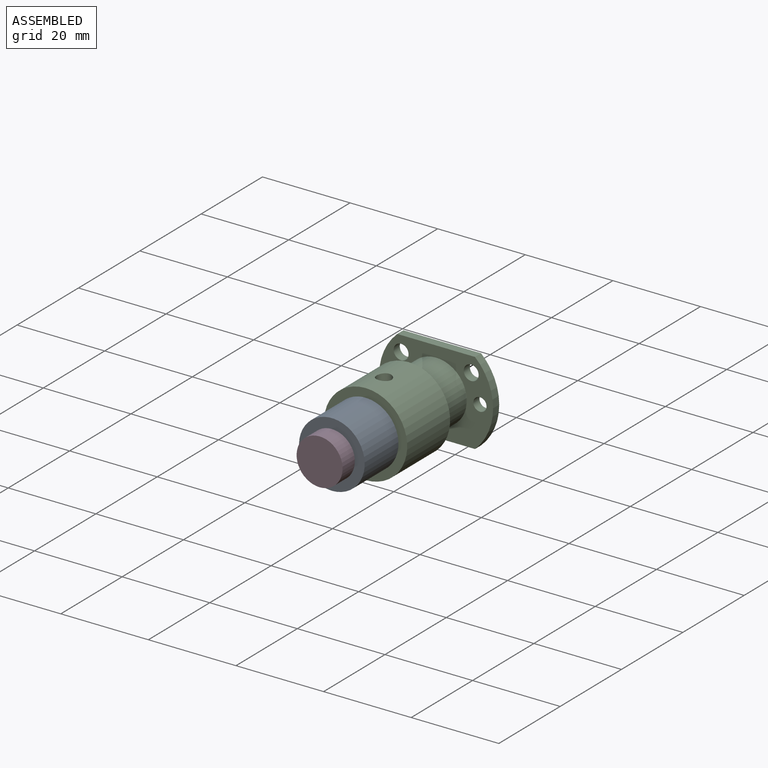
[diagram: assembled view]
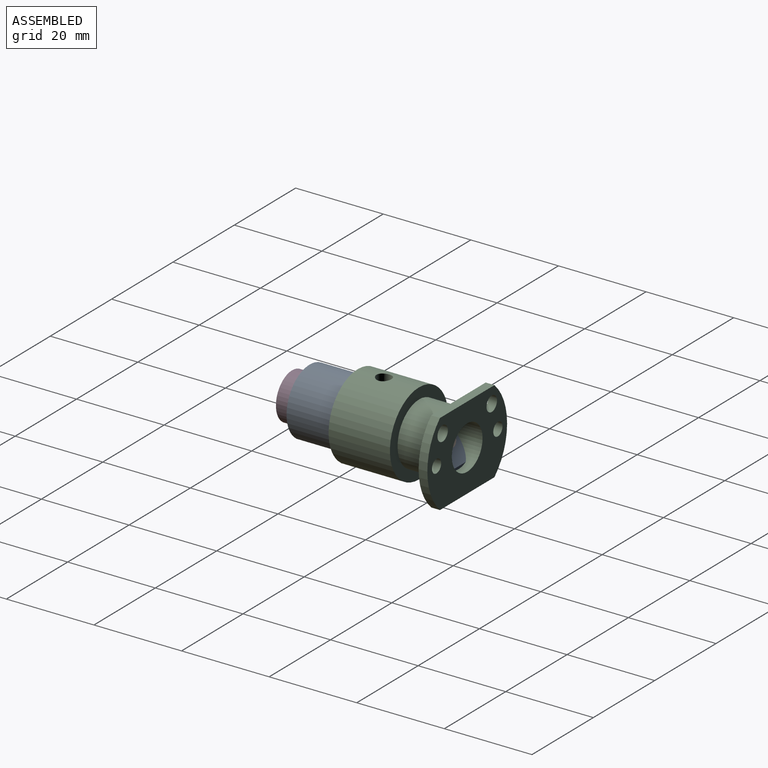
[diagram: assembled view, second angle]
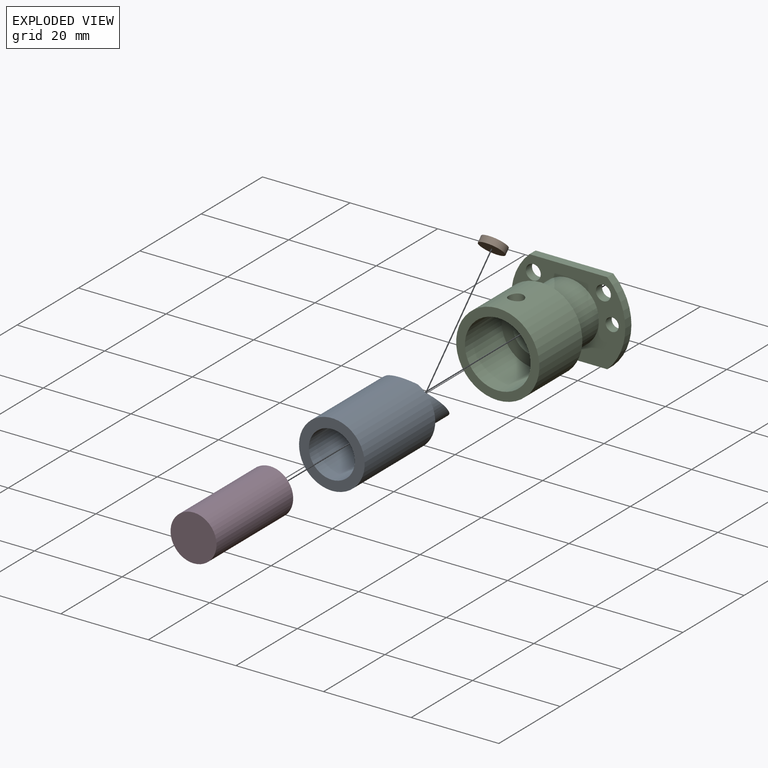
[diagram: exploded view]
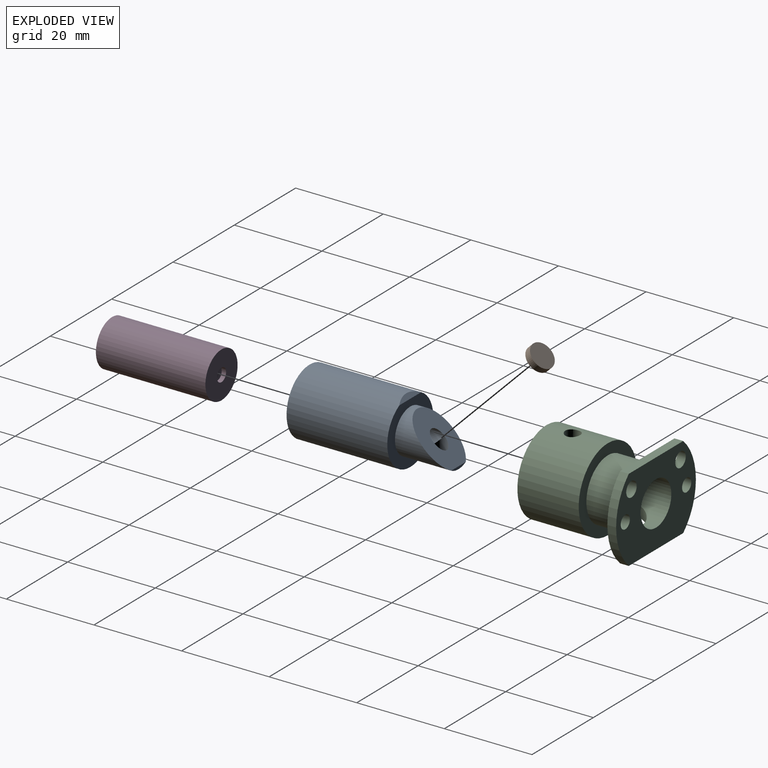
[diagram: exploded view, second angle]
ASSEMBLY  parts=4 mates=3
PART A: 11 faces, bbox 15x34x15 mm
  f0: cylinder r=7.5mm len=23mm, axis (0,1,0), area 1079.4mm2, adj f3,f4,f9
  f1: cylinder r=1.75mm len=8.6mm, axis (0,1,0), area 82.3mm2, adj f6,f7,f8
  f2: cylinder r=5mm len=11mm, axis (0,1,0), area 195.6mm2, adj f3,f7,f8,f10
  f3: plane 15x14.1mm, normal (0,1,0), area 93.8mm2, adj f0,f2,f9
  f4: plane 15x15mm, normal (0,-1,0), area 90.1mm2, adj f0,f5
  f5: cylinder r=5.25mm len=21mm, axis (0,-1,0), area 692.7mm2, adj f4,f6
  f6: plane 10.5x10.5mm, normal (0,-1,0), area 77mm2, adj f1,f5
  f7: cylinder r=1.75mm len=4.68mm, axis (0,0,1), area 39.3mm2, adj f1,f2,f8
  f8: plane 10x9.4mm, normal (0,0.71,0.71), area 94.7mm2, adj f1,f2,f7,f10
  f9: plane 7.12x0.9mm, normal (0,0.71,0.71), area 6.1mm2, adj f0,f3
  f10: plane 4.75x0.6mm, normal (0,1,0), area 1.9mm2, adj f2,f8
PART B: 3 faces, bbox 5.7x1.5x5.7 mm
  f0: cylinder r=2.85mm len=5.7mm, axis (0,1,0), area 26.9mm2, adj f1,f2
  f1: plane 5.7x5.7mm, normal (0,-1,0), area 25.5mm2, adj f0
  f2: plane 5.7x5.7mm, normal (0,1,0), area 25.5mm2, adj f0
PART C: 19 faces, bbox 26x25x19 mm
  f0: cylinder r=9.5mm len=19mm, axis (0,-1,0), area 826.6mm2, adj f8,f16,f18
  f1: cylinder r=7.5mm len=15mm, axis (0,-1,0), area 556.4mm2, adj f8,f17,f18
  f2: cylinder r=5mm len=13mm, axis (0,-1,0), area 367mm2, adj f4,f9,f17
  f3: cylinder r=7mm len=14mm, axis (0,-1,0), area 356mm2, adj f5,f9,f16
  f4: plane 26x19mm, normal (0,1,0), area 334.7mm2, adj f2,f6,f7,f10,f11,f12,f13,f14
  f5: plane 26x19mm, normal (0,-1,0), area 259.3mm2, adj f3,f6,f7,f10,f11,f12,f13,f14
  f6: cylinder r=13mm len=19mm, axis (0,1,0), area 42.6mm2, adj f4,f5,f14,f15
  f7: cylinder r=13mm len=19mm, axis (0,1,0), area 42.6mm2, adj f4,f5,f14,f15
  f8: plane 19x19mm, normal (0,-1,0), area 106.8mm2, adj f0,f1
  f9: cylinder r=3.5mm len=7mm, axis (0,0,1), area 48.9mm2, adj f2,f3
  f10: cylinder r=1.5mm len=3mm, axis (0,-1,0), area 18.8mm2, adj f4,f5
  f11: cylinder r=1.7mm len=3.4mm, axis (0,-1,0), area 21.4mm2, adj f4,f5
  f12: cylinder r=1.7mm len=3.4mm, axis (0,-1,0), area 21.4mm2, adj f4,f5
  f13: cylinder r=1.5mm len=3mm, axis (0,-1,0), area 18.8mm2, adj f4,f5
  f14: plane 17.75x2mm, normal (0,0,-1), area 35.5mm2, adj f4,f5,f6,f7
  f15: plane 17.75x2mm, normal (0,0,1), area 35.5mm2, adj f4,f5,f6,f7
  f16: plane 19x19mm, normal (0,1,0), area 129.6mm2, adj f0,f3
  f17: plane 15x15mm, normal (0,-1,0), area 98.2mm2, adj f1,f2
  f18: cylinder r=1.7mm len=3.4mm, axis (0,0,-1), area 21.6mm2, adj f0,f1
PART D: 5 faces, bbox 10.5x25x10.5 mm
  f0: cylinder r=5.25mm len=25mm, axis (0,-1,0), area 824.7mm2, adj f1,f2
  f1: plane 10.5x10.5mm, normal (0,1,0), area 86.6mm2, adj f0
  f2: plane 10.5x10.5mm, normal (0,-1,0), area 79.5mm2, adj f0,f3
  f3: cylinder r=1.5mm len=3mm, axis (0,-1,0), area 9.4mm2, adj f2,f4
  f4: plane 3x3mm, normal (0,-1,0), area 7.1mm2, adj f3
PLACE A t=(-6.29,4.81,-16.75)mm
PLACE B rot(axis=(1,0,0),45deg) t=(-6.29,-0.53,-15.69)mm
PLACE C t=(-6.29,4.81,-16.75)mm
PLACE D rot(axis=(1,0,0),180deg) t=(-6.29,-10.19,-16.75)mm
MATE fastened C.f2 <-> A.f2  axis (0,-1,0) through (-6.29,-8.19,-16.75)mm
MATE planar B.f0 <-> A.f8  axis (0,-0.71,-0.71) through (-6.29,-1.59,-16.75)mm
MATE fastened D.f0 <-> A.f5  axis (0,1,0) through (-6.29,-10.19,-16.75)mm
